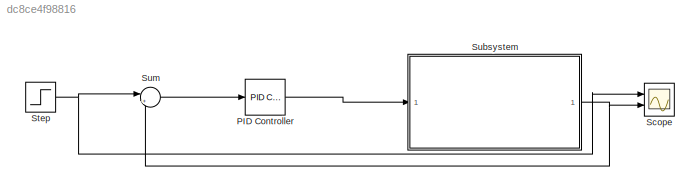
MODEL slx_dc8ce4f98816
KIND model
CONFIG AbsTol = auto
CONFIG EnableMultiTasking = off
CONFIG FixedStep = auto
CONFIG MaxStep = auto
CONFIG MinStep = auto
CONFIG RelTol = 1e-3
CONFIG SampleTimeConstraint = Unconstrained
CONFIG SolverName = VariableStepAuto
CONFIG StartTime = 0.0
CONFIG StopTime = 10.0
BLOCK [Reference] PID Controller  REF=pid_lib/PID Controller
  Ports = [1, 1]
  SourceBlock = pid_lib/PID Controller
  SourceProductBaseCode = SL
  SourceType = PID 1dof
BLOCK [Scope] Scope
  Floating = off
  NumInputPorts = 2
  Ports = [2]
  ScopeSpecificationString = Simulink.scopes.TimeScopeBlockCfg('CurrentConfiguration', extmgr.ConfigurationSet(extmgr.Configuration('Core','General UI',true),extmgr.Configuration('Core','Source UI',true),extmgr.Configuration('Sources','WiredSimulink',true,'DataLoggingVariableName','ScopeData1'),extmgr.Configuration('Visuals','Time Domain',true,'SerializedDisplays',{struct('MinYLimReal','-0.125','MaxYLimReal','1.125','YLabelRe...<+2112ch>
BLOCK [Step] Step
  SampleTime = 0
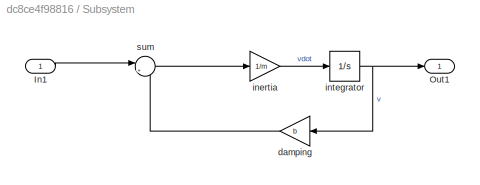
BLOCK [SubSystem] Subsystem
  Ports = [1, 1]
  RequestExecContextInheritance = off
BLOCK [Inport] Subsystem/In1
BLOCK [Outport] Subsystem/Out1
BLOCK [Gain] Subsystem/damping
  Gain = b
  NameLocation = top
BLOCK [Gain] Subsystem/inertia
  Gain = 1/m
BLOCK [Integrator] Subsystem/integrator
  Ports = [1, 1]
BLOCK [Sum] Subsystem/sum
  Inputs = |+-
  NameLocation = top
  Ports = [2, 1]
BLOCK [Sum] Sum
  Inputs = |++
  Ports = [2, 1]
LINE PID Controller:1 -> Subsystem:1
NET Step:1 -> Scope:1, Sum:1
LINE Subsystem/In1:1 -> Subsystem/sum:1
LINE Subsystem/damping:1 -> Subsystem/sum:2
LINE Subsystem/inertia:1 -> Subsystem/integrator:1
NET Subsystem/integrator:1 -> Subsystem/Out1:1, Subsystem/damping:1
LINE Subsystem/sum:1 -> Subsystem/inertia:1
NET Subsystem:1 -> Scope:2, Sum:2
LINE Sum:1 -> PID Controller:1
note: NET lines group one-source signal fan-out (src -> all destinations, sorted); 1:1 wires keep LINE
